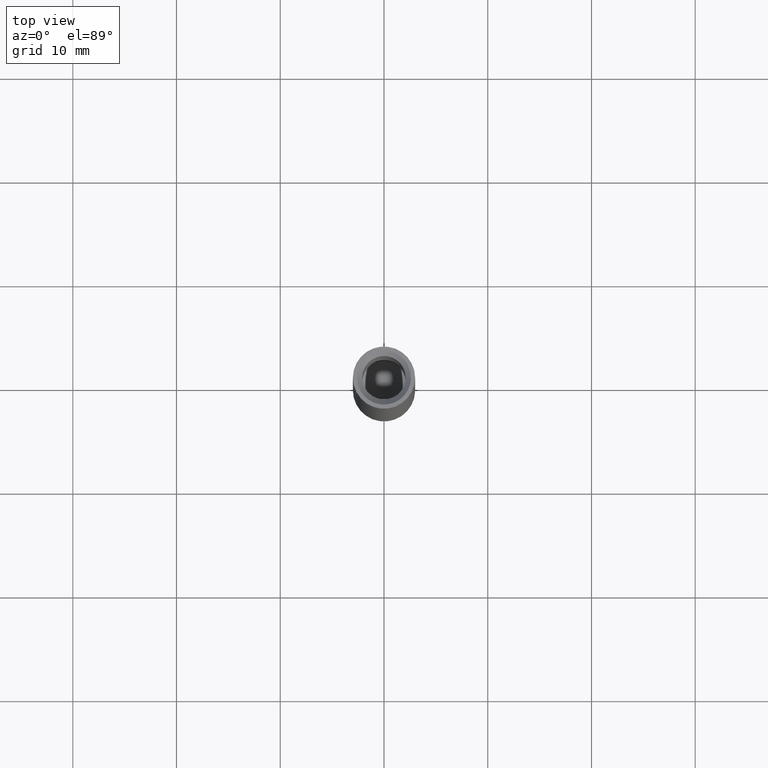
[diagram: clean part render]
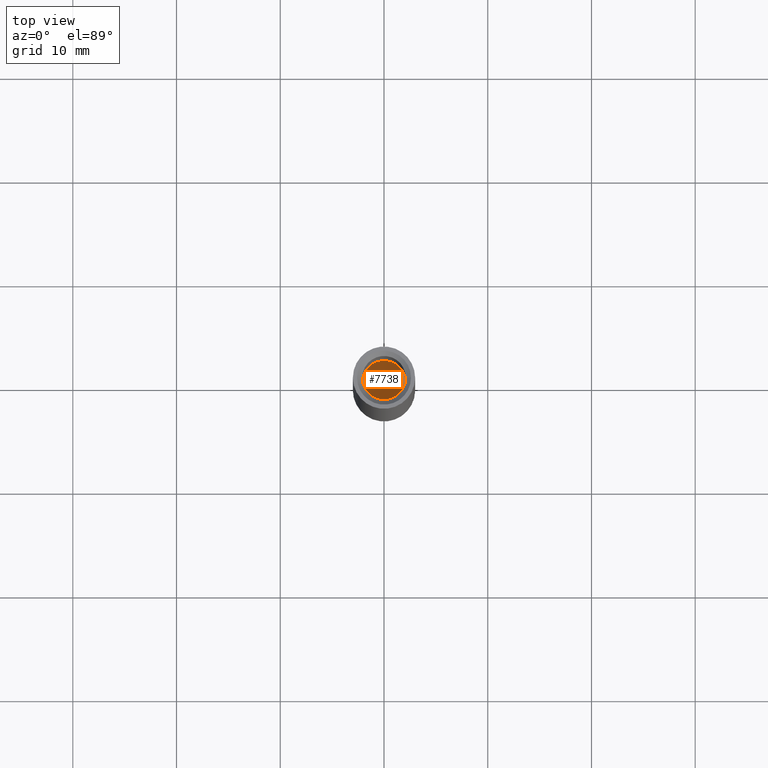
[diagram: same view with one face highlighted and labeled with its STEP entity id]
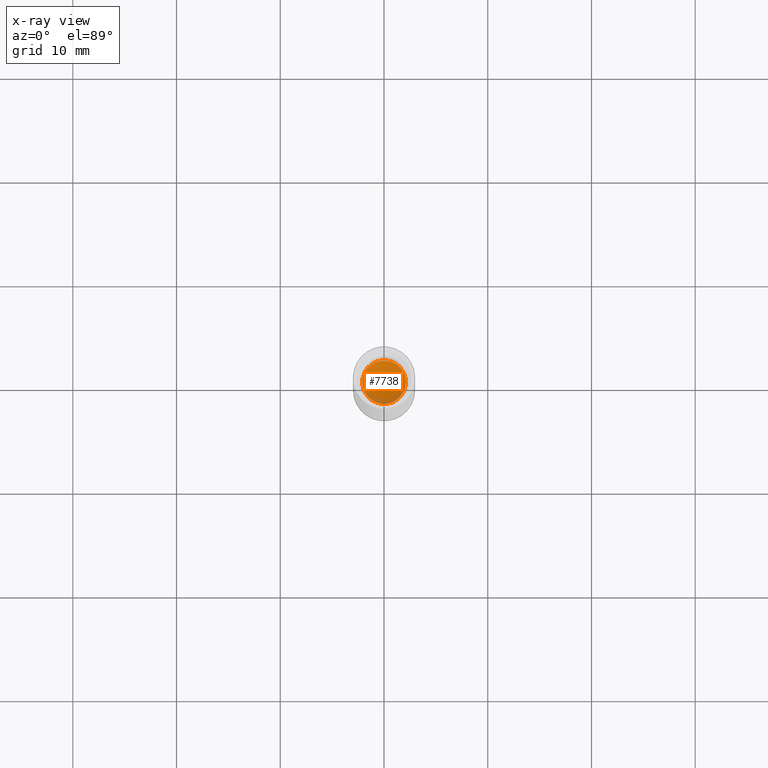
[diagram: x-ray of the same camera — body ghosted, the highlighted face saturated]
A machine part, top view. The second image highlights one B-rep face of the part: STEP entity #7738.
The next image is the same camera in x-ray: the body ghosted, the highlighted face saturated — about 14% of this face is hidden behind the body in this view.
In plain terms, the highlighted conical surface has half-angle 59 deg.
Its self-contained STEP definition (entity closure, byte-faithful):
#148 = CIRCLE ( 'NONE', #8825, 2.099999999999993872 ) ;
#301 = DIRECTION ( 'NONE',  ( 1.000000000000000000, 0.000000000000000000, 0.000000000000000000 ) ) ;
#1760 = CONICAL_SURFACE ( 'NONE', #5006, 2.099999999999993872, 1.029744258676651425 ) ;
#2627 = ORIENTED_EDGE ( 'NONE', *, *, #8707, .T. ) ;
#3589 = DIRECTION ( 'NONE',  ( 1.000000000000000000, 0.000000000000000000, 0.000000000000000000 ) ) ;
#4614 = FACE_OUTER_BOUND ( 'NONE', #11099, .T. ) ;
#5006 = AXIS2_PLACEMENT_3D ( 'NONE', #12526, #10337, #3589 ) ;
#5864 = VERTEX_POINT ( 'NONE', #7307 ) ;
#7307 = CARTESIAN_POINT ( 'NONE',  ( 2.099999999999993872, 0.000000000000000000, 9.000000000000005329 ) ) ;
#7738 = ADVANCED_FACE ( 'NONE', ( #4614 ), #1760, .F. ) ;
#8707 = EDGE_CURVE ( 'NONE', #5864, #5864, #148, .T. ) ;
#8825 = AXIS2_PLACEMENT_3D ( 'NONE', #11687, #10343, #301 ) ;
#10337 = DIRECTION ( 'NONE',  ( -0.000000000000000000, -0.000000000000000000, 1.000000000000000000 ) ) ;
#10343 = DIRECTION ( 'NONE',  ( -0.000000000000000000, -0.000000000000000000, 1.000000000000000000 ) ) ;
#11099 = EDGE_LOOP ( 'NONE', ( #2627 ) ) ;
#11687 = CARTESIAN_POINT ( 'NONE',  ( 0.000000000000000000, 0.000000000000000000, 9.000000000000005329 ) ) ;
#12526 = CARTESIAN_POINT ( 'NONE',  ( 0.000000000000000000, 0.000000000000000000, 9.000000000000005329 ) ) ;